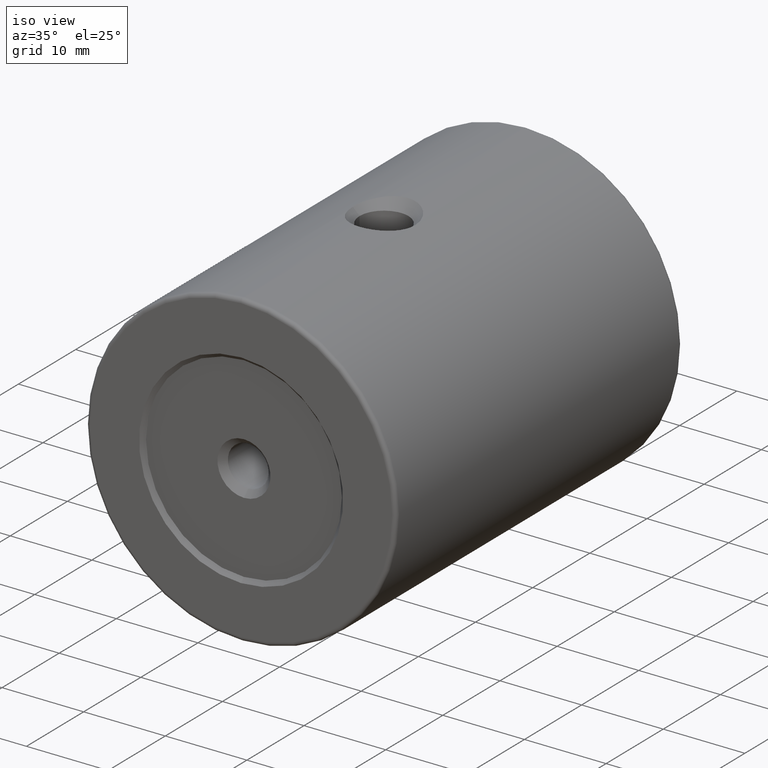
[diagram: clean part render]
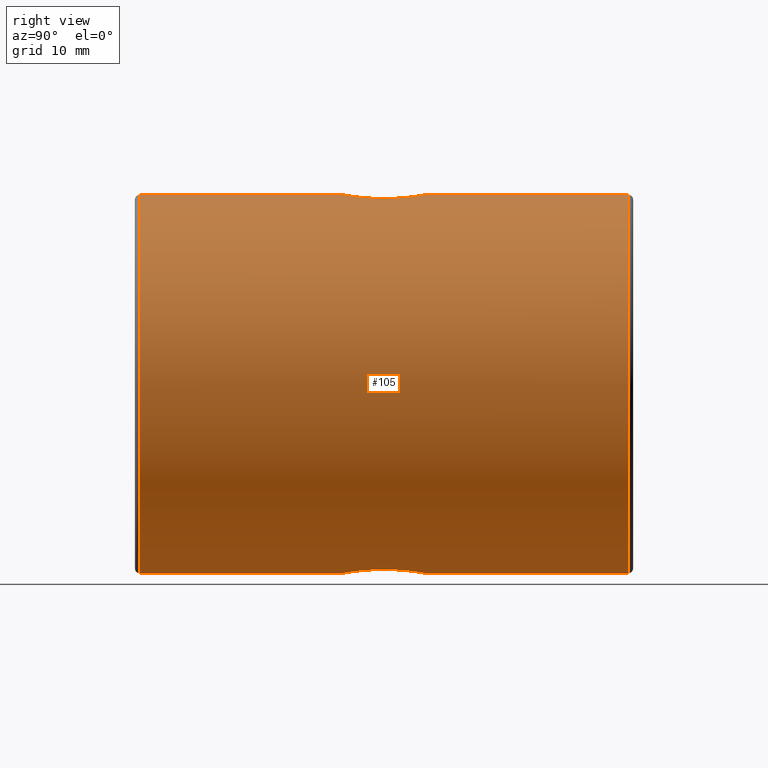
[diagram: tour spotlight — one face highlighted and labeled with its STEP entity id]
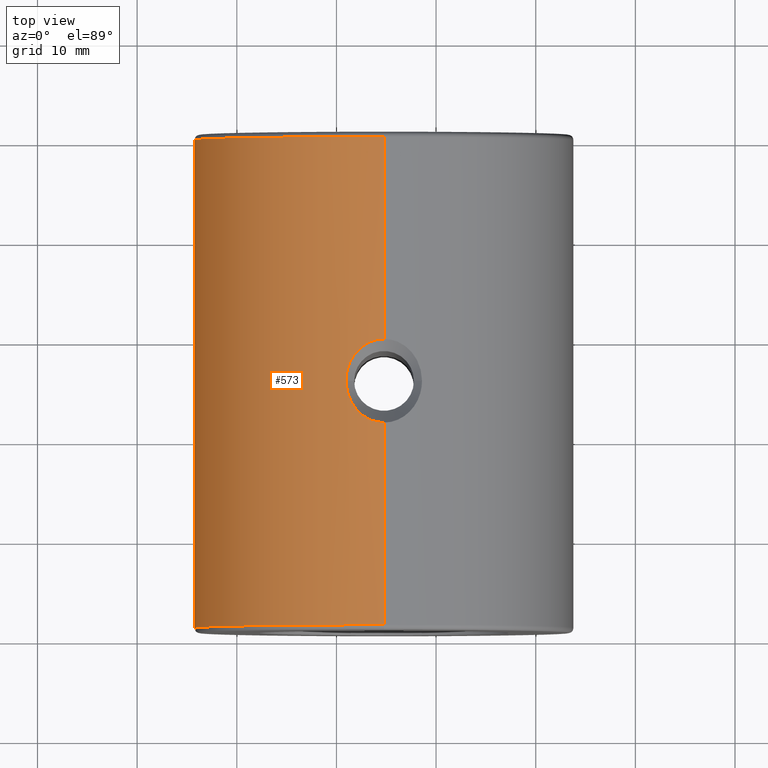
[diagram: tour spotlight — one face highlighted and labeled with its STEP entity id]
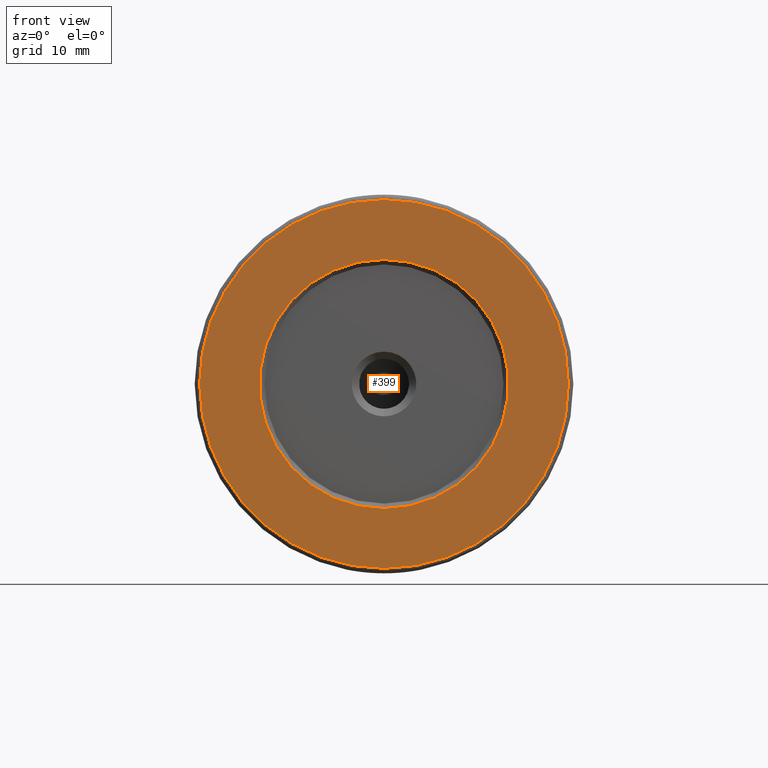
[diagram: tour spotlight — one face highlighted and labeled with its STEP entity id]
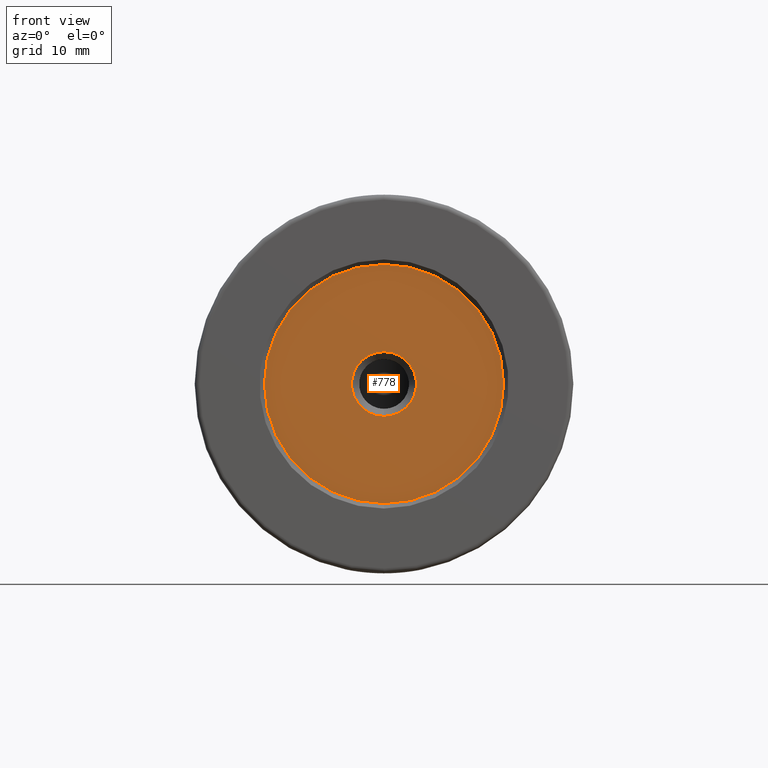
[diagram: tour spotlight — one face highlighted and labeled with its STEP entity id]
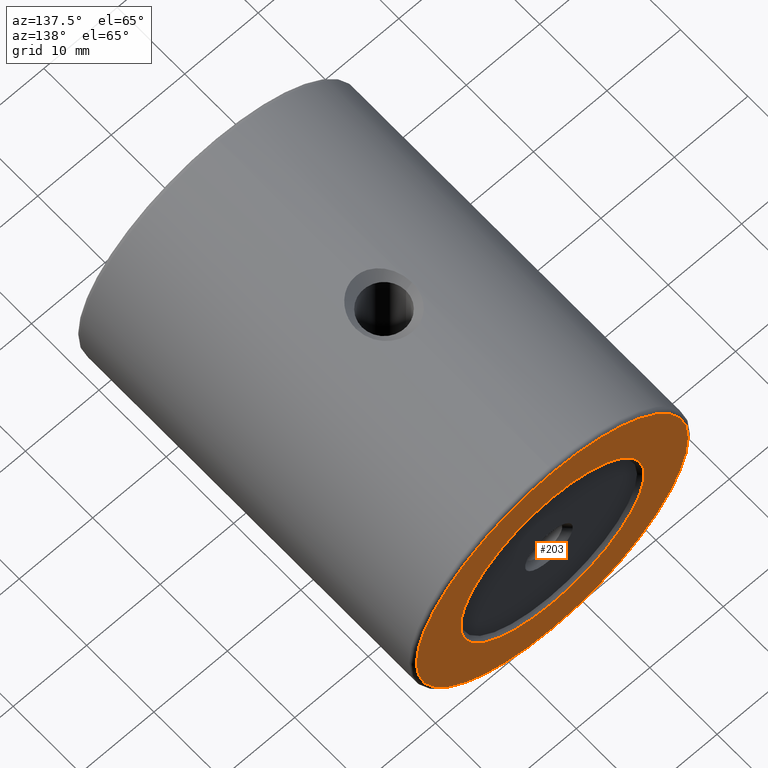
[diagram: tour spotlight — one face highlighted and labeled with its STEP entity id]
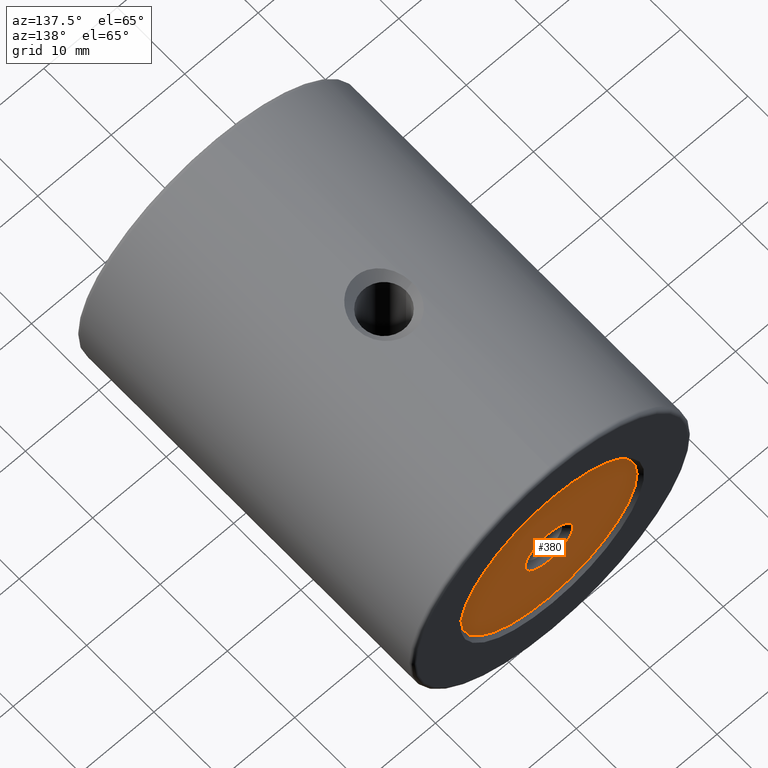
[diagram: tour spotlight — one face highlighted and labeled with its STEP entity id]
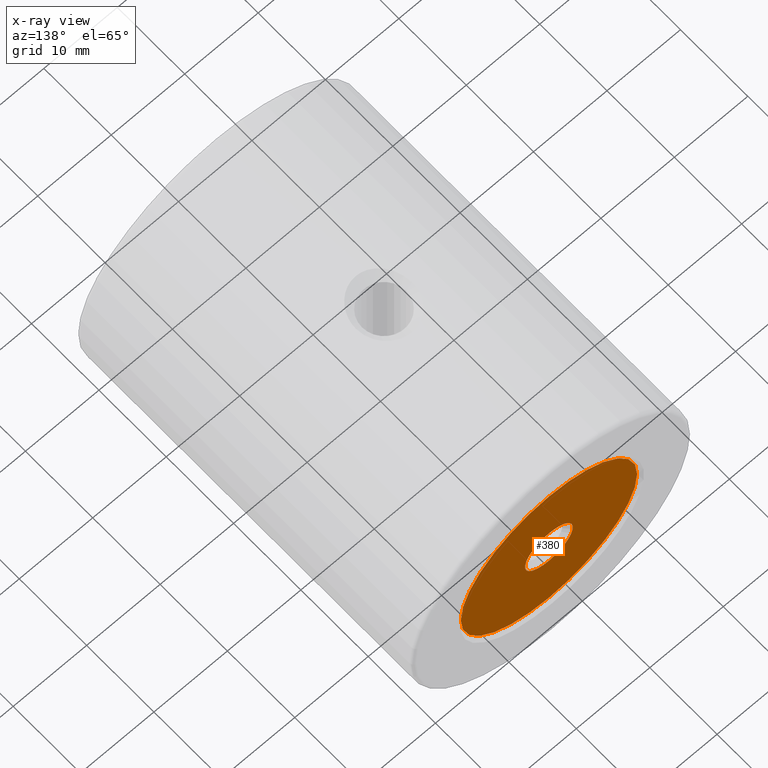
[diagram: x-ray of the same camera — body ghosted, this tour face saturated]
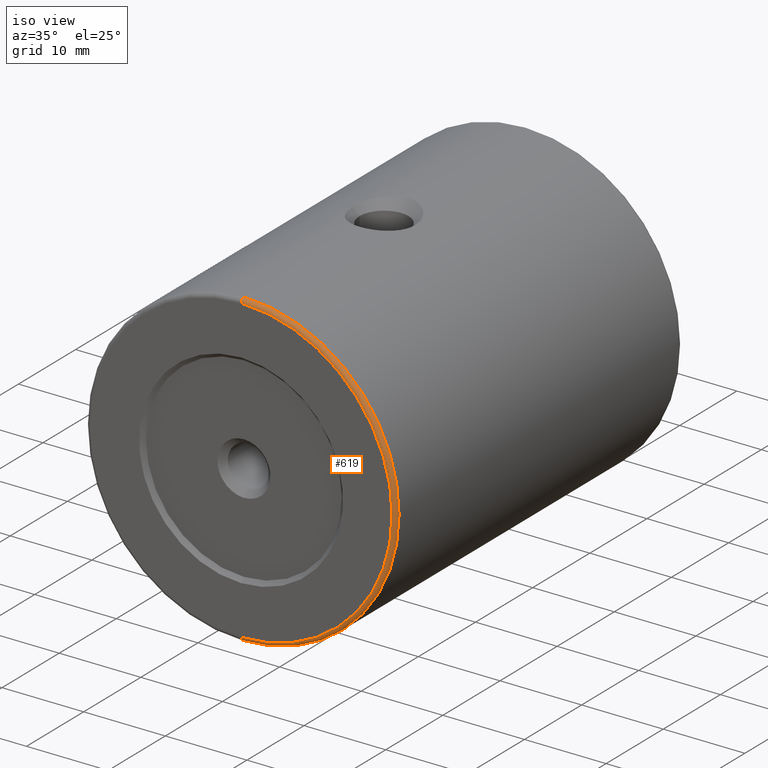
[diagram: tour spotlight — one face highlighted and labeled with its STEP entity id]
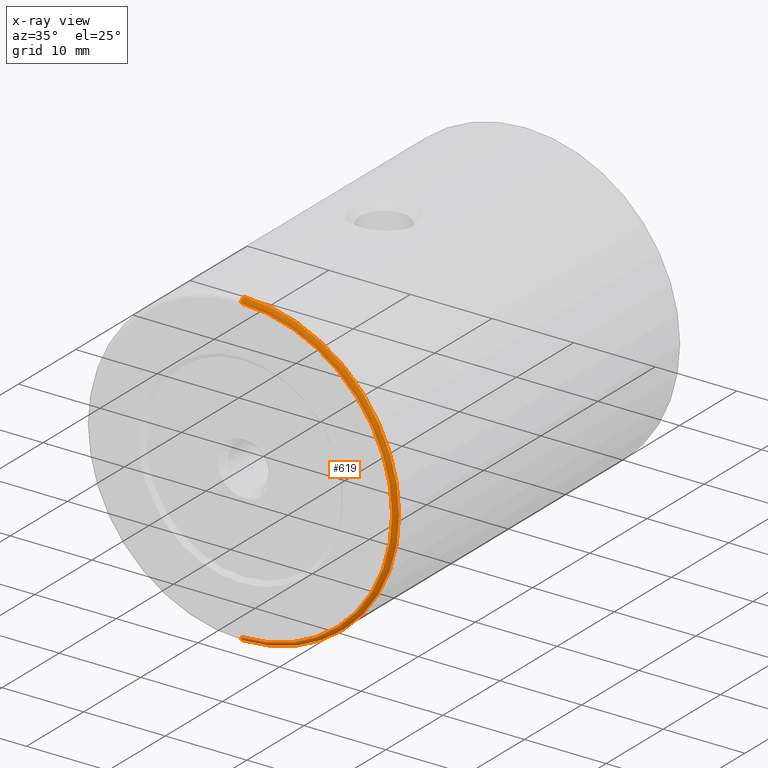
[diagram: x-ray of the same camera — body ghosted, this tour face saturated]
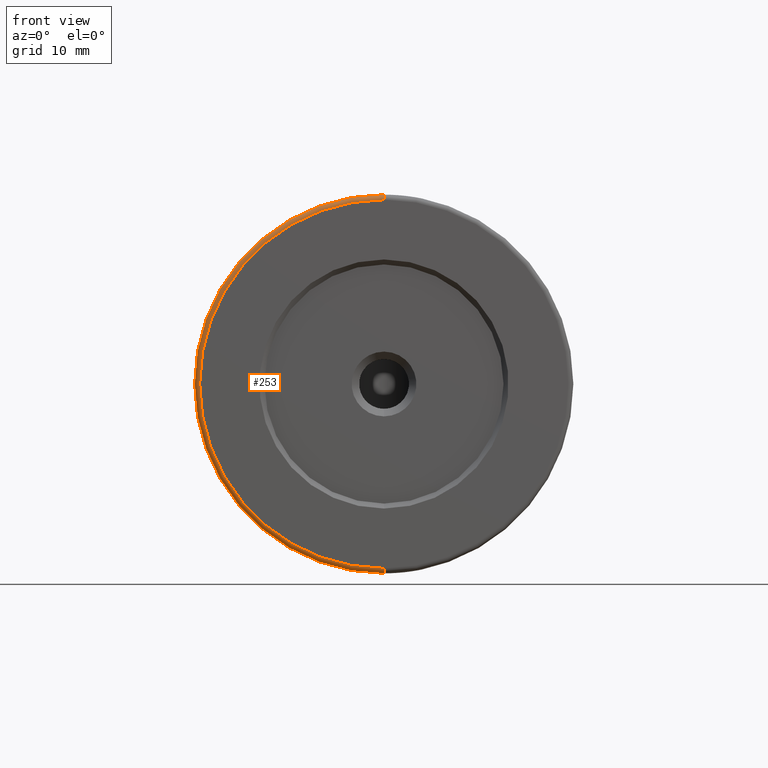
[diagram: tour spotlight — one face highlighted and labeled with its STEP entity id]
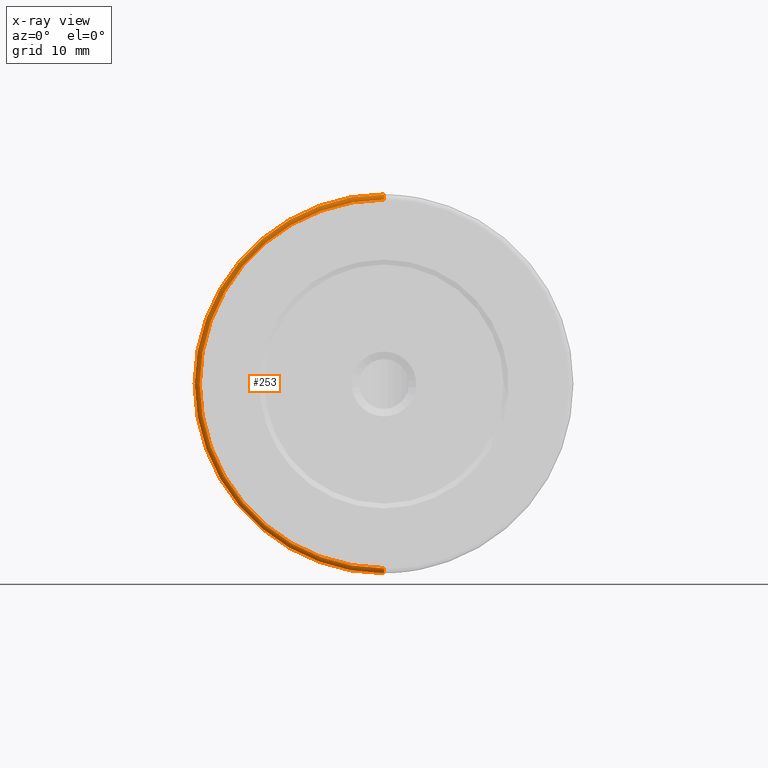
[diagram: x-ray of the same camera — body ghosted, this tour face saturated]
A machine part: a face-by-face anatomy tour. The part has 28 B-rep faces; the first image is the clean iso view, then the 8 largest visible faces are spotlighted one at a time (largest first), each with its STEP entity span.

Face 1 — right view, entity #105. In plain terms, the highlighted cylindrical surface (partial cylindrical patch) has radius 19 mm, axis along (-0, -1, -0).
Definition (entity closure, byte-faithful):
#9 = CARTESIAN_POINT ( 'NONE',  ( -82.29571650229409840, -1.565921010254242685, 418.7733634629371409 ) ) ;
#16 = CARTESIAN_POINT ( 'NONE',  ( -81.52612773688036896, -3.217498801581725854, 418.6361777253471814 ) ) ;
#19 = B_SPLINE_CURVE_WITH_KNOTS ( 'NONE', 3,
 ( #711, #775, #1014, #942, #65, #163, #499, #968, #99, #265, #345, #268, #421, #359, #178, #495, #123, #366 ),
 .UNSPECIFIED., .F., .F.,
 ( 4, 2, 2, 2, 2, 2, 2, 2, 4 ),
 ( 0.003733624680294762854, 0.004520577988407363350, 0.005307531296519963845, 0.006094484604632565208, 0.006881437912745166571, 0.007668391220857769669, 0.008455344528970371032, 0.009242297837082972395, 0.01002925114519557549 ),
 .UNSPECIFIED. ) ;
#25 = CARTESIAN_POINT ( 'NONE',  ( -81.88059113652985843, -6.288202399889226690, 418.7034922552546163 ) ) ;
#42 = DIRECTION ( 'NONE',  ( -0.0000000000000000000, -1.000000000000000000, -0.0000000000000000000 ) ) ;
#56 = CARTESIAN_POINT ( 'NONE',  ( -84.18753268678749180, -0.2111030241652349648, 381.0267308325566091 ) ) ;
#65 = CARTESIAN_POINT ( 'NONE',  ( -83.93808702169893365, -8.222923423920713404, 381.0422776972831116 ) ) ;
#72 = ORIENTED_EDGE ( 'NONE', *, *, #971, .T. ) ;
#81 = CARTESIAN_POINT ( 'NONE',  ( -82.14497683168238495, -1.778754477084894647, 418.7488661386886406 ) ) ;
#83 = EDGE_CURVE ( 'NONE', #220, #639, #853, .T. ) ;
#87 = CARTESIAN_POINT ( 'NONE',  ( -85.22679983354142053, 20.23866000832571643, 381.0000000000000000 ) ) ;
#94 = CARTESIAN_POINT ( 'NONE',  ( -85.22679983354142053, -28.76133999167428357, 381.0000000000000000 ) ) ;
#99 = CARTESIAN_POINT ( 'NONE',  ( -82.63814515825626472, -7.352595677616392322, 381.1763808475635642 ) ) ;
#101 = CARTESIAN_POINT ( 'NONE',  ( -82.29671814351611658, -6.957786961682561611, 418.7735023986901979 ) ) ;
#105 = ADVANCED_FACE ( 'NONE', ( #429 ), #438, .T. ) ;
#107 = CARTESIAN_POINT ( 'NONE',  ( -81.43586367851925445, -4.785232307264688068, 418.6180255036908306 ) ) ;
#115 = EDGE_CURVE ( 'NONE', #368, #639, #275, .T. ) ;
#117 = CARTESIAN_POINT ( 'NONE',  ( -82.63814515825626472, -7.352595677616392322, 418.8236191524364926 ) ) ;
#122 = CARTESIAN_POINT ( 'NONE',  ( -85.22679983354142053, -0.06133999167429877997, 381.0000000000000000 ) ) ;
#123 = CARTESIAN_POINT ( 'NONE',  ( -81.41341497436532393, -4.524701080299158740, 381.3866151408239489 ) ) ;
#132 = EDGE_LOOP ( 'NONE', ( #884, #72, #176, #954, #647, #535, #391, #456, #919, #316 ) ) ;
#151 = DIRECTION ( 'NONE',  ( -0.0000000000000000000, -1.000000000000000000, -0.0000000000000000000 ) ) ;
#159 = CARTESIAN_POINT ( 'NONE',  ( -85.22679983354142053, 20.73866000832571643, 419.0000000000000568 ) ) ;
#163 = CARTESIAN_POINT ( 'NONE',  ( -83.46626106639050136, -7.995107640163255702, 381.0802611310913903 ) ) ;
#165 = CARTESIAN_POINT ( 'NONE',  ( -83.46511704992533964, -0.5280370949836369343, 418.9196591600729107 ) ) ;
#173 = CARTESIAN_POINT ( 'NONE',  ( -81.41341497436532393, -4.261339991674277350, 381.3866151408238920 ) ) ;
#176 = ORIENTED_EDGE ( 'NONE', *, *, #350, .F. ) ;
#178 = CARTESIAN_POINT ( 'NONE',  ( -81.52508446630257311, -5.300719478809650553, 381.3640301049963455 ) ) ;
#192 = VECTOR ( 'NONE', #151, 1000.000000000000000 ) ;
#204 = CARTESIAN_POINT ( 'NONE',  ( -85.22679983354142053, 20.73866000832571643, 400.0000000000000000 ) ) ;
#205 = AXIS2_PLACEMENT_3D ( 'NONE', #423, #656, #960 ) ;
#216 = CARTESIAN_POINT ( 'NONE',  ( -85.22679983354142053, -0.06133999167429877997, 419.0000000000000568 ) ) ;
#220 = VERTEX_POINT ( 'NONE', #830 ) ;
#228 = CARTESIAN_POINT ( 'NONE',  ( -81.59279953389886941, -2.964568543362572584, 381.3505402671659681 ) ) ;
#251 = CARTESIAN_POINT ( 'NONE',  ( -81.41341497436532393, -4.261339991674279126, 418.6133848591761648 ) ) ;
#257 = CARTESIAN_POINT ( 'NONE',  ( -83.46626106639050136, -7.995107640163255702, 418.9197388689088370 ) ) ;
#258 = CARTESIAN_POINT ( 'NONE',  ( -84.18753268678747759, -0.2111030241652349926, 418.9732691674435046 ) ) ;
#263 = CARTESIAN_POINT ( 'NONE',  ( -85.22679983354142053, 20.73866000832571643, 381.0000000000000000 ) ) ;
#265 = CARTESIAN_POINT ( 'NONE',  ( -82.29671814351611658, -6.957786961682561611, 381.2264976013096884 ) ) ;
#268 = CARTESIAN_POINT ( 'NONE',  ( -81.88059113652985843, -6.288202399889226690, 381.2965077447454973 ) ) ;
#270 = EDGE_CURVE ( 'NONE', #751, #844, #781, .T. ) ;
#274 = CARTESIAN_POINT ( 'NONE',  ( -84.96243902164792416, -8.461339991674275751, 419.0000000000001137 ) ) ;
#275 = LINE ( 'NONE', #263, #555 ) ;
#292 = VERTEX_POINT ( 'NONE', #618 ) ;
#297 = CARTESIAN_POINT ( 'NONE',  ( -84.96393248785444996, -0.06133999167429707300, 381.0000000000000000 ) ) ;
#306 = CARTESIAN_POINT ( 'NONE',  ( -83.94119362236200743, -0.2983445582111096117, 381.0420400455853382 ) ) ;
#310 = CARTESIAN_POINT ( 'NONE',  ( -82.83102515499486174, -0.9863390833895689935, 381.1505157249931699 ) ) ;
#312 = EDGE_CURVE ( 'NONE', #578, #844, #482, .T. ) ;
#316 = ORIENTED_EDGE ( 'NONE', *, *, #312, .F. ) ;
#328 = DIRECTION ( 'NONE',  ( -0.0000000000000000000, -1.000000000000000000, -0.0000000000000000000 ) ) ;
#345 = CARTESIAN_POINT ( 'NONE',  ( -82.14309753980985818, -6.741247472261910012, 381.2514396459365571 ) ) ;
#350 = EDGE_CURVE ( 'NONE', #952, #906, #911, .T. ) ;
#359 = CARTESIAN_POINT ( 'NONE',  ( -81.59285872774556481, -5.558021363143366145, 381.3505314850146988 ) ) ;
#360 = AXIS2_PLACEMENT_3D ( 'NONE', #204, #42, #985 ) ;
#362 = EDGE_CURVE ( 'NONE', #605, #220, #731, .T. ) ;
#366 = CARTESIAN_POINT ( 'NONE',  ( -81.41341497436532393, -4.261339991674277350, 381.3866151408238920 ) ) ;
#368 = VERTEX_POINT ( 'NONE', #888 ) ;
#386 = CARTESIAN_POINT ( 'NONE',  ( -84.69707466841040855, -0.09239770115273913953, 381.0056742590844578 ) ) ;
#391 = ORIENTED_EDGE ( 'NONE', *, *, #115, .F. ) ;
#397 = CARTESIAN_POINT ( 'NONE',  ( -81.77187972696634688, -2.468561370532886379, 418.6834641745472823 ) ) ;
#406 = CARTESIAN_POINT ( 'NONE',  ( -85.22679983354142053, -0.06133999167429877997, 419.0000000000000568 ) ) ;
#412 = CARTESIAN_POINT ( 'NONE',  ( -83.94119362236200743, -0.2983445582111095007, 418.9579599544148323 ) ) ;
#417 = CARTESIAN_POINT ( 'NONE',  ( -85.22679983354142053, 20.73866000832571643, 381.0000000000000000 ) ) ;
#421 = CARTESIAN_POINT ( 'NONE',  ( -81.77082803723338600, -6.051458313143355028, 381.3167330802414767 ) ) ;
#423 = CARTESIAN_POINT ( 'NONE',  ( -85.22679983354142053, -28.76133999167428357, 400.0000000000000000 ) ) ;
#429 = FACE_OUTER_BOUND ( 'NONE', #132, .T. ) ;
#437 = CARTESIAN_POINT ( 'NONE',  ( -82.14309753980985818, -6.741247472261910012, 418.7485603540634429 ) ) ;
#438 = CYLINDRICAL_SURFACE ( 'NONE', #360, 19.00000000000001776 ) ;
#455 = CARTESIAN_POINT ( 'NONE',  ( -85.22679983354142053, -0.06133999167429877997, 381.0000000000000000 ) ) ;
#456 = ORIENTED_EDGE ( 'NONE', *, *, #998, .T. ) ;
#469 = CARTESIAN_POINT ( 'NONE',  ( -85.22679983354142053, 20.73866000832571643, 419.0000000000000568 ) ) ;
#474 = CIRCLE ( 'NONE', #709, 19.00000000000001776 ) ;
#482 = LINE ( 'NONE', #417, #744 ) ;
#495 = CARTESIAN_POINT ( 'NONE',  ( -81.43586367851925445, -4.785232307264686291, 381.3819744963091694 ) ) ;
#496 = CARTESIAN_POINT ( 'NONE',  ( -81.59279953389886941, -2.964568543362574360, 418.6494597328340888 ) ) ;
#499 = CARTESIAN_POINT ( 'NONE',  ( -83.24438980785724596, -7.856924346119599889, 381.1025380199827737 ) ) ;
#506 = CARTESIAN_POINT ( 'NONE',  ( -85.22679983354142053, -8.461339991674268646, 419.0000000000000568 ) ) ;
#535 = ORIENTED_EDGE ( 'NONE', *, *, #83, .T. ) ;
#542 = LINE ( 'NONE', #469, #192 ) ;
#552 = CARTESIAN_POINT ( 'NONE',  ( -85.22679983354142053, -8.461339991674268646, 419.0000000000000568 ) ) ;
#553 = DIRECTION ( 'NONE',  ( -0.0000000000000000000, -1.000000000000000000, -0.0000000000000000000 ) ) ;
#555 = VECTOR ( 'NONE', #592, 1000.000000000000000 ) ;
#568 = CARTESIAN_POINT ( 'NONE',  ( -81.43639937781144056, -3.732814026306843225, 418.6181352063767918 ) ) ;
#576 = CARTESIAN_POINT ( 'NONE',  ( -81.88335953815429491, -2.229144387579318209, 418.7039841074685000 ) ) ;
#578 = VERTEX_POINT ( 'NONE', #87 ) ;
#584 = CARTESIAN_POINT ( 'NONE',  ( -81.59285872774556481, -5.558021363143371474, 418.6494685149854149 ) ) ;
#589 = CARTESIAN_POINT ( 'NONE',  ( -81.77082803723338600, -6.051458313143361245, 418.6832669197586370 ) ) ;
#592 = DIRECTION ( 'NONE',  ( -0.0000000000000000000, -1.000000000000000000, -0.0000000000000000000 ) ) ;
#605 = VERTEX_POINT ( 'NONE', #552 ) ;
#618 = CARTESIAN_POINT ( 'NONE',  ( -85.22679983354142053, 20.23866000832571643, 419.0000000000000568 ) ) ;
#639 = VERTEX_POINT ( 'NONE', #94 ) ;
#647 = ORIENTED_EDGE ( 'NONE', *, *, #362, .T. ) ;
#656 = DIRECTION ( 'NONE',  ( 0.0000000000000000000, 1.000000000000000000, 0.0000000000000000000 ) ) ;
#661 = CARTESIAN_POINT ( 'NONE',  ( -84.18986350246656514, -8.312315706571794749, 418.9733988301109093 ) ) ;
#668 = EDGE_CURVE ( 'NONE', #578, #292, #474, .T. ) ;
#670 = CARTESIAN_POINT ( 'NONE',  ( -81.52508446630257311, -5.300719478809653218, 418.6359698950037682 ) ) ;
#680 = CARTESIAN_POINT ( 'NONE',  ( -83.93808702169893365, -8.222923423920713404, 418.9577223027167747 ) ) ;
#697 = CARTESIAN_POINT ( 'NONE',  ( -81.77187972696631846, -2.468561370532884602, 381.3165358254529451 ) ) ;
#709 = AXIS2_PLACEMENT_3D ( 'NONE', #811, #726, #823 ) ;
#711 = CARTESIAN_POINT ( 'NONE',  ( -85.22679983354142053, -8.461339991674268646, 381.0000000000000000 ) ) ;
#726 = DIRECTION ( 'NONE',  ( -0.0000000000000000000, -1.000000000000000000, -0.0000000000000000000 ) ) ;
#731 = LINE ( 'NONE', #159, #948 ) ;
#744 = VECTOR ( 'NONE', #553, 1000.000000000000000 ) ;
#751 = VERTEX_POINT ( 'NONE', #173 ) ;
#757 = CARTESIAN_POINT ( 'NONE',  ( -81.41341497436532393, -4.524701080299160516, 418.6133848591761648 ) ) ;
#767 = CARTESIAN_POINT ( 'NONE',  ( -82.29571650229409840, -1.565921010254241796, 381.2266365370629160 ) ) ;
#771 = CARTESIAN_POINT ( 'NONE',  ( -81.43639937781146898, -3.732814026306841892, 381.3818647936232082 ) ) ;
#775 = CARTESIAN_POINT ( 'NONE',  ( -84.96243902164792416, -8.461339991674275751, 381.0000000000000568 ) ) ;
#777 = CARTESIAN_POINT ( 'NONE',  ( -83.46511704992532543, -0.5280370949836370453, 381.0803408399271461 ) ) ;
#781 = B_SPLINE_CURVE_WITH_KNOTS ( 'NONE', 3,
 ( #935, #923, #771, #931, #228, #697, #1007, #782, #767, #855, #310, #846, #777, #306, #56, #386, #297, #455 ),
 .UNSPECIFIED., .F., .F.,
 ( 4, 2, 2, 2, 2, 2, 2, 2, 4 ),
 ( 0.01002925114519557549, 0.01081737704504791807, 0.01160550294490026065, 0.01239362884475260496, 0.01318175474460494753, 0.01396988064445729011, 0.01475800654430963268, 0.01554613244416197526, 0.01633425834401431784 ),
 .UNSPECIFIED. ) ;
#782 = CARTESIAN_POINT ( 'NONE',  ( -82.14497683168241338, -1.778754477084883101, 381.2511338613114162 ) ) ;
#790 = CARTESIAN_POINT ( 'NONE',  ( -81.41341497436532393, -4.261339991674279126, 418.6133848591761648 ) ) ;
#793 = CARTESIAN_POINT ( 'NONE',  ( -82.83102515499484753, -0.9863390833895698817, 418.8494842750069438 ) ) ;
#798 = CARTESIAN_POINT ( 'NONE',  ( -82.64087668775827922, -1.167056617506570415, 418.8240119711596208 ) ) ;
#808 = CARTESIAN_POINT ( 'NONE',  ( -84.69707466841043697, -0.09239770115273915341, 418.9943257409157127 ) ) ;
#810 = B_SPLINE_CURVE_WITH_KNOTS ( 'NONE', 3,
 ( #506, #274, #970, #661, #680, #257, #812, #824, #117, #101, #437, #25, #589, #584, #670, #107, #757, #965 ),
 .UNSPECIFIED., .F., .F.,
 ( 4, 2, 2, 2, 2, 2, 2, 2, 4 ),
 ( 0.003733624680294762854, 0.004520577988407363350, 0.005307531296519963845, 0.006094484604632564341, 0.006881437912745166571, 0.007668391220857767934, 0.008455344528970369297, 0.009242297837082972395, 0.01002925114519557376 ),
 .UNSPECIFIED. ) ;
#811 = CARTESIAN_POINT ( 'NONE',  ( -85.22679983354142053, 20.23866000832571643, 400.0000000000000000 ) ) ;
#812 = CARTESIAN_POINT ( 'NONE',  ( -83.24438980785724596, -7.856924346119599889, 418.8974619800173400 ) ) ;
#813 = CARTESIAN_POINT ( 'NONE',  ( -83.24199987212080032, -0.6676668308104377614, 418.8971787009924697 ) ) ;
#823 = DIRECTION ( 'NONE',  ( 0.0000000000000000000, 0.0000000000000000000, 1.000000000000000000 ) ) ;
#824 = CARTESIAN_POINT ( 'NONE',  ( -82.82757549099136440, -7.533607839044134558, 418.8490779973516851 ) ) ;
#830 = CARTESIAN_POINT ( 'NONE',  ( -85.22679983354142053, -28.76133999167428357, 419.0000000000000568 ) ) ;
#844 = VERTEX_POINT ( 'NONE', #122 ) ;
#846 = CARTESIAN_POINT ( 'NONE',  ( -83.24199987212081453, -0.6676668308104372063, 381.1028212990075872 ) ) ;
#853 = CIRCLE ( 'NONE', #205, 19.00000000000001776 ) ;
#855 = CARTESIAN_POINT ( 'NONE',  ( -82.64087668775829343, -1.167056617506569971, 381.1759880288403792 ) ) ;
#866 = CARTESIAN_POINT ( 'NONE',  ( -81.41341497436532393, -3.997586484548957486, 418.6133848591761648 ) ) ;
#884 = ORIENTED_EDGE ( 'NONE', *, *, #668, .T. ) ;
#888 = CARTESIAN_POINT ( 'NONE',  ( -85.22679983354142053, -8.461339991674268646, 381.0000000000000000 ) ) ;
#906 = VERTEX_POINT ( 'NONE', #216 ) ;
#911 = B_SPLINE_CURVE_WITH_KNOTS ( 'NONE', 3,
 ( #251, #866, #568, #16, #496, #397, #576, #81, #9, #798, #793, #813, #165, #412, #258, #808, #959, #406 ),
 .UNSPECIFIED., .F., .F.,
 ( 4, 2, 2, 2, 2, 2, 2, 2, 4 ),
 ( 0.01002925114519557376, 0.01081737704504791807, 0.01160550294490026065, 0.01239362884475260496, 0.01318175474460494753, 0.01396988064445729011, 0.01475800654430963268, 0.01554613244416197526, 0.01633425834401431784 ),
 .UNSPECIFIED. ) ;
#919 = ORIENTED_EDGE ( 'NONE', *, *, #270, .T. ) ;
#923 = CARTESIAN_POINT ( 'NONE',  ( -81.41341497436533814, -3.997586484548954822, 381.3866151408237783 ) ) ;
#931 = CARTESIAN_POINT ( 'NONE',  ( -81.52612773688034054, -3.217498801581724077, 381.3638222746528754 ) ) ;
#935 = CARTESIAN_POINT ( 'NONE',  ( -81.41341497436532393, -4.261339991674277350, 381.3866151408238920 ) ) ;
#942 = CARTESIAN_POINT ( 'NONE',  ( -84.18986350246656514, -8.312315706571794749, 381.0266011698889201 ) ) ;
#948 = VECTOR ( 'NONE', #328, 1000.000000000000000 ) ;
#952 = VERTEX_POINT ( 'NONE', #790 ) ;
#954 = ORIENTED_EDGE ( 'NONE', *, *, #1013, .F. ) ;
#959 = CARTESIAN_POINT ( 'NONE',  ( -84.96393248785446417, -0.06133999167429705912, 419.0000000000001705 ) ) ;
#960 = DIRECTION ( 'NONE',  ( 0.0000000000000000000, 0.0000000000000000000, 1.000000000000000000 ) ) ;
#965 = CARTESIAN_POINT ( 'NONE',  ( -81.41341497436532393, -4.261339991674279126, 418.6133848591761648 ) ) ;
#968 = CARTESIAN_POINT ( 'NONE',  ( -82.82757549099136440, -7.533607839044134558, 381.1509220026484286 ) ) ;
#970 = CARTESIAN_POINT ( 'NONE',  ( -84.69972560880194123, -8.430702186240790041, 418.9944016194976939 ) ) ;
#971 = EDGE_CURVE ( 'NONE', #292, #906, #542, .T. ) ;
#985 = DIRECTION ( 'NONE',  ( 0.0000000000000000000, 0.0000000000000000000, -1.000000000000000000 ) ) ;
#998 = EDGE_CURVE ( 'NONE', #368, #751, #19, .T. ) ;
#1007 = CARTESIAN_POINT ( 'NONE',  ( -81.88335953815429491, -2.229144387579305775, 381.2960158925316705 ) ) ;
#1013 = EDGE_CURVE ( 'NONE', #605, #952, #810, .T. ) ;
#1014 = CARTESIAN_POINT ( 'NONE',  ( -84.69972560880194123, -8.430702186240790041, 381.0055983805024198 ) ) ;

Face 2 — top view, entity #573. In plain terms, the highlighted cylindrical surface (partial cylindrical patch) has radius 19 mm, axis along (-0, -1, -0).
Definition (entity closure, byte-faithful):
#2 = VERTEX_POINT ( 'NONE', #945 ) ;
#6 = CARTESIAN_POINT ( 'NONE',  ( -89.04018469271751712, -4.261339991674283567, 418.6133848591761648 ) ) ;
#11 = ORIENTED_EDGE ( 'NONE', *, *, #903, .T. ) ;
#20 = CARTESIAN_POINT ( 'NONE',  ( -88.86003986455601478, -5.560364975193093251, 418.6496055284342788 ) ) ;
#45 = CARTESIAN_POINT ( 'NONE',  ( -87.61973751830021229, -7.539048035020909921, 418.8498653824453868 ) ) ;
#57 = DIRECTION ( 'NONE',  ( 0.0000000000000000000, 0.0000000000000000000, -1.000000000000000000 ) ) ;
#63 = CARTESIAN_POINT ( 'NONE',  ( -86.26440072079715549, -0.2103516366053766184, 418.9733999019272801 ) ) ;
#70 = CARTESIAN_POINT ( 'NONE',  ( -85.22679983354142053, 20.23866000832571643, 400.0000000000000000 ) ) ;
#71 = CARTESIAN_POINT ( 'NONE',  ( -86.51258600344370109, -0.2986253842693811777, 381.0420819662991789 ) ) ;
#77 = CARTESIAN_POINT ( 'NONE',  ( -86.51258600344370109, -0.2986253842693811777, 418.9579180337008211 ) ) ;
#87 = CARTESIAN_POINT ( 'NONE',  ( -85.22679983354142053, 20.23866000832571643, 381.0000000000000000 ) ) ;
#90 = CARTESIAN_POINT ( 'NONE',  ( -89.04018469271750291, -4.524194045943173315, 418.6133848591762217 ) ) ;
#94 = CARTESIAN_POINT ( 'NONE',  ( -85.22679983354142053, -28.76133999167428357, 381.0000000000000000 ) ) ;
#102 = CARTESIAN_POINT ( 'NONE',  ( -88.86003986455601478, -5.560364975193093251, 381.3503944715658349 ) ) ;
#115 = EDGE_CURVE ( 'NONE', #368, #639, #275, .T. ) ;
#116 = CARTESIAN_POINT ( 'NONE',  ( -85.49146371113677390, -8.461339991674272198, 419.0000000000001705 ) ) ;
#118 = EDGE_CURVE ( 'NONE', #639, #220, #522, .T. ) ;
#120 = ORIENTED_EDGE ( 'NONE', *, *, #115, .T. ) ;
#122 = CARTESIAN_POINT ( 'NONE',  ( -85.22679983354142053, -0.06133999167429877997, 381.0000000000000000 ) ) ;
#134 = CARTESIAN_POINT ( 'NONE',  ( -88.30889371447072733, -1.779107847670829301, 418.7488230436633785 ) ) ;
#144 = CARTESIAN_POINT ( 'NONE',  ( -85.74900820764774778, -0.09101629208817690886, 381.0054266209082812 ) ) ;
#149 = CARTESIAN_POINT ( 'NONE',  ( -88.92749338337961262, -3.217524007279799481, 381.3638264625174088 ) ) ;
#151 = DIRECTION ( 'NONE',  ( -0.0000000000000000000, -1.000000000000000000, -0.0000000000000000000 ) ) ;
#159 = CARTESIAN_POINT ( 'NONE',  ( -85.22679983354142053, 20.73866000832571643, 419.0000000000000568 ) ) ;
#164 = CARTESIAN_POINT ( 'NONE',  ( -86.98410511525524669, -7.996885633606630961, 381.0799701750693771 ) ) ;
#189 = DIRECTION ( 'NONE',  ( 0.0000000000000000000, 0.0000000000000000000, 1.000000000000000000 ) ) ;
#192 = VECTOR ( 'NONE', #151, 1000.000000000000000 ) ;
#209 = CARTESIAN_POINT ( 'NONE',  ( -87.81247192360183362, -1.166828721202192165, 418.8240449429266050 ) ) ;
#213 = CARTESIAN_POINT ( 'NONE',  ( -88.57090845425022962, -2.230408319438852871, 381.2961339358312216 ) ) ;
#216 = CARTESIAN_POINT ( 'NONE',  ( -85.22679983354142053, -0.06133999167429877997, 419.0000000000000568 ) ) ;
#218 = CARTESIAN_POINT ( 'NONE',  ( -88.86084895124396610, -2.964938769552044828, 381.3505518109733430 ) ) ;
#220 = VERTEX_POINT ( 'NONE', #830 ) ;
#224 = CARTESIAN_POINT ( 'NONE',  ( -88.68258810927235913, -2.470732174027440387, 381.3166984144028220 ) ) ;
#248 = ORIENTED_EDGE ( 'NONE', *, *, #763, .F. ) ;
#254 = AXIS2_PLACEMENT_3D ( 'NONE', #972, #895, #189 ) ;
#261 = B_SPLINE_CURVE_WITH_KNOTS ( 'NONE', 3,
 ( #514, #278, #904, #674, #102, #597, #872, #707, #721, #327, #400, #717, #164, #645, #396, #712, #1015, #314 ),
 .UNSPECIFIED., .F., .F.,
 ( 4, 2, 2, 2, 2, 2, 2, 2, 4 ),
 ( 0.02262406464777516613, 0.02341192012650424731, 0.02419977560523332849, 0.02498763108396241314, 0.02577548656269149432, 0.02656334204142057551, 0.02735119752014966016, 0.02813905299887874134, 0.02892690847760782252 ),
 .UNSPECIFIED. ) ;
#263 = CARTESIAN_POINT ( 'NONE',  ( -85.22679983354142053, 20.73866000832571643, 381.0000000000000000 ) ) ;
#275 = LINE ( 'NONE', #263, #555 ) ;
#278 = CARTESIAN_POINT ( 'NONE',  ( -89.04018469271750291, -4.524194045943173315, 381.3866151408239489 ) ) ;
#283 = EDGE_CURVE ( 'NONE', #844, #2, #545, .T. ) ;
#287 = CARTESIAN_POINT ( 'NONE',  ( -87.20501299645449933, -7.859601616013272007, 418.8978900510489325 ) ) ;
#291 = CARTESIAN_POINT ( 'NONE',  ( -85.22679983354142053, 20.73866000832571643, 400.0000000000000000 ) ) ;
#292 = VERTEX_POINT ( 'NONE', #618 ) ;
#294 = AXIS2_PLACEMENT_3D ( 'NONE', #70, #643, #620 ) ;
#302 = CARTESIAN_POINT ( 'NONE',  ( -88.68258810927235913, -2.470732174027440387, 418.6833015855973485 ) ) ;
#304 = EDGE_CURVE ( 'NONE', #906, #991, #364, .T. ) ;
#312 = EDGE_CURVE ( 'NONE', #578, #844, #482, .T. ) ;
#314 = CARTESIAN_POINT ( 'NONE',  ( -85.22679983354142053, -8.461339991674268646, 381.0000000000000000 ) ) ;
#327 = CARTESIAN_POINT ( 'NONE',  ( -87.81196888986544025, -7.356176429533654471, 381.1758971842136248 ) ) ;
#328 = DIRECTION ( 'NONE',  ( -0.0000000000000000000, -1.000000000000000000, -0.0000000000000000000 ) ) ;
#332 = CARTESIAN_POINT ( 'NONE',  ( -89.01782207825233684, -4.784939022142112641, 418.6180084472278509 ) ) ;
#338 = CARTESIAN_POINT ( 'NONE',  ( -88.68189959692058721, -6.053472744008438156, 418.6834286230944713 ) ) ;
#344 = CARTESIAN_POINT ( 'NONE',  ( -88.30796467933343763, -6.745178320961991325, 418.7489826282481999 ) ) ;
#357 = EDGE_LOOP ( 'NONE', ( #928, #11, #570, #967, #941, #120, #878, #754, #248, #1005 ) ) ;
#362 = EDGE_CURVE ( 'NONE', #605, #220, #731, .T. ) ;
#364 = B_SPLINE_CURVE_WITH_KNOTS ( 'NONE', 3,
 ( #860, #471, #786, #63, #77, #449, #686, #610, #209, #384, #134, #690, #302, #999, #927, #477, #873, #6 ),
 .UNSPECIFIED., .F., .F.,
 ( 4, 2, 2, 2, 2, 2, 2, 2, 4 ),
 ( 0.01633425834401431784, 0.01712048413198442517, 0.01790670991995452904, 0.01869293570792463638, 0.01947916149589474372, 0.02026538728386484758, 0.02105161307183495145, 0.02183783885980505879, 0.02262406464777516613 ),
 .UNSPECIFIED. ) ;
#368 = VERTEX_POINT ( 'NONE', #888 ) ;
#372 = AXIS2_PLACEMENT_3D ( 'NONE', #291, #797, #57 ) ;
#384 = CARTESIAN_POINT ( 'NONE',  ( -88.15730954550808462, -1.565196067254975176, 418.7734514940302688 ) ) ;
#390 = CARTESIAN_POINT ( 'NONE',  ( -89.04018469271751712, -4.261339991674283567, 381.3866151408238920 ) ) ;
#396 = CARTESIAN_POINT ( 'NONE',  ( -86.26127162816044347, -8.313090059122508535, 381.0264652089310289 ) ) ;
#400 = CARTESIAN_POINT ( 'NONE',  ( -87.61973751830021229, -7.539048035020909921, 381.1501346175546701 ) ) ;
#417 = CARTESIAN_POINT ( 'NONE',  ( -85.22679983354142053, 20.73866000832571643, 381.0000000000000000 ) ) ;
#444 = CARTESIAN_POINT ( 'NONE',  ( -85.75119431850812646, -8.431120250548380213, 418.9944772180206769 ) ) ;
#449 = CARTESIAN_POINT ( 'NONE',  ( -86.98394057735728779, -0.5256534841595331686, 418.9200517613895727 ) ) ;
#462 = CARTESIAN_POINT ( 'NONE',  ( -88.30889371447072733, -1.779107847670829301, 381.2511769563365078 ) ) ;
#466 = CARTESIAN_POINT ( 'NONE',  ( -86.26440072079715549, -0.2103516366053766184, 381.0266000980727767 ) ) ;
#467 = EDGE_CURVE ( 'NONE', #2, #368, #261, .T. ) ;
#469 = CARTESIAN_POINT ( 'NONE',  ( -85.22679983354142053, 20.73866000832571643, 419.0000000000000568 ) ) ;
#471 = CARTESIAN_POINT ( 'NONE',  ( -85.48903342595741606, -0.06133999167429705912, 419.0000000000001705 ) ) ;
#477 = CARTESIAN_POINT ( 'NONE',  ( -89.01727933074084831, -3.733366076984472315, 418.6181191867033817 ) ) ;
#482 = LINE ( 'NONE', #417, #744 ) ;
#514 = CARTESIAN_POINT ( 'NONE',  ( -89.04018469271751712, -4.261339991674283567, 381.3866151408238920 ) ) ;
#522 = CIRCLE ( 'NONE', #254, 19.00000000000001776 ) ;
#532 = CARTESIAN_POINT ( 'NONE',  ( -85.22679983354142053, -8.461339991674268646, 419.0000000000000568 ) ) ;
#539 = CARTESIAN_POINT ( 'NONE',  ( -86.98394057735728779, -0.5256534841595331686, 381.0799482386107115 ) ) ;
#542 = LINE ( 'NONE', #469, #192 ) ;
#543 = CARTESIAN_POINT ( 'NONE',  ( -85.48903342595741606, -0.06133999167429705912, 380.9999999999999432 ) ) ;
#545 = B_SPLINE_CURVE_WITH_KNOTS ( 'NONE', 3,
 ( #708, #543, #144, #466, #71, #539, #989, #615, #548, #702, #462, #213, #224, #218, #149, #1004, #858, #390 ),
 .UNSPECIFIED., .F., .F.,
 ( 4, 2, 2, 2, 2, 2, 2, 2, 4 ),
 ( 0.01633425834401431784, 0.01712048413198442517, 0.01790670991995452904, 0.01869293570792463638, 0.01947916149589474372, 0.02026538728386484758, 0.02105161307183495145, 0.02183783885980505879, 0.02262406464777516613 ),
 .UNSPECIFIED. ) ;
#548 = CARTESIAN_POINT ( 'NONE',  ( -87.81247192360183362, -1.166828721202192165, 381.1759550570734518 ) ) ;
#552 = CARTESIAN_POINT ( 'NONE',  ( -85.22679983354142053, -8.461339991674268646, 419.0000000000000568 ) ) ;
#553 = DIRECTION ( 'NONE',  ( -0.0000000000000000000, -1.000000000000000000, -0.0000000000000000000 ) ) ;
#555 = VECTOR ( 'NONE', #592, 1000.000000000000000 ) ;
#570 = ORIENTED_EDGE ( 'NONE', *, *, #312, .T. ) ;
#573 = ADVANCED_FACE ( 'NONE', ( #687 ), #785, .T. ) ;
#574 = CARTESIAN_POINT ( 'NONE',  ( -88.57188684336087192, -6.290580469037319489, 418.7036980113034588 ) ) ;
#578 = VERTEX_POINT ( 'NONE', #87 ) ;
#592 = DIRECTION ( 'NONE',  ( -0.0000000000000000000, -1.000000000000000000, -0.0000000000000000000 ) ) ;
#597 = CARTESIAN_POINT ( 'NONE',  ( -88.68189959692058721, -6.053472744008438156, 381.3165713769054150 ) ) ;
#605 = VERTEX_POINT ( 'NONE', #552 ) ;
#610 = CARTESIAN_POINT ( 'NONE',  ( -87.62330431072487613, -0.9868626275845048257, 418.8494039038823757 ) ) ;
#615 = CARTESIAN_POINT ( 'NONE',  ( -87.62330431072487613, -0.9868626275845048257, 381.1505960961178516 ) ) ;
#618 = CARTESIAN_POINT ( 'NONE',  ( -85.22679983354142053, 20.23866000832571643, 419.0000000000000568 ) ) ;
#620 = DIRECTION ( 'NONE',  ( 0.0000000000000000000, 0.0000000000000000000, 1.000000000000000000 ) ) ;
#639 = VERTEX_POINT ( 'NONE', #94 ) ;
#643 = DIRECTION ( 'NONE',  ( -0.0000000000000000000, -1.000000000000000000, -0.0000000000000000000 ) ) ;
#645 = CARTESIAN_POINT ( 'NONE',  ( -86.51381476393198966, -8.223524199725767758, 381.0421719862650889 ) ) ;
#649 = CARTESIAN_POINT ( 'NONE',  ( -88.92822251687863400, -5.302205923223622719, 418.6360285018084824 ) ) ;
#660 = CARTESIAN_POINT ( 'NONE',  ( -88.15440500365676257, -6.961092752758728963, 418.7738934117829217 ) ) ;
#674 = CARTESIAN_POINT ( 'NONE',  ( -88.92822251687863400, -5.302205923223622719, 381.3639714981914040 ) ) ;
#686 = CARTESIAN_POINT ( 'NONE',  ( -87.21008987037792792, -0.6665384523181927534, 418.8973495991008917 ) ) ;
#687 = FACE_OUTER_BOUND ( 'NONE', #357, .T. ) ;
#690 = CARTESIAN_POINT ( 'NONE',  ( -88.57090845425022962, -2.230408319438852871, 418.7038660641689489 ) ) ;
#695 = CARTESIAN_POINT ( 'NONE',  ( -86.98410511525524669, -7.996885633606630961, 418.9200298249307366 ) ) ;
#699 = CARTESIAN_POINT ( 'NONE',  ( -89.04018469271751712, -4.261339991674283567, 418.6133848591761648 ) ) ;
#702 = CARTESIAN_POINT ( 'NONE',  ( -88.15730954550808462, -1.565196067254975176, 381.2265485059697880 ) ) ;
#707 = CARTESIAN_POINT ( 'NONE',  ( -88.30796467933343763, -6.745178320961991325, 381.2510173717518569 ) ) ;
#708 = CARTESIAN_POINT ( 'NONE',  ( -85.22679983354142053, -0.06133999167429877997, 381.0000000000000000 ) ) ;
#712 = CARTESIAN_POINT ( 'NONE',  ( -85.75119431850812646, -8.431120250548380213, 381.0055227819794936 ) ) ;
#717 = CARTESIAN_POINT ( 'NONE',  ( -87.20501299645449933, -7.859601616013272007, 381.1021099489511244 ) ) ;
#721 = CARTESIAN_POINT ( 'NONE',  ( -88.15440500365676257, -6.961092752758728963, 381.2261065882171351 ) ) ;
#731 = LINE ( 'NONE', #159, #948 ) ;
#740 = CIRCLE ( 'NONE', #294, 19.00000000000001776 ) ;
#744 = VECTOR ( 'NONE', #553, 1000.000000000000000 ) ;
#748 = CARTESIAN_POINT ( 'NONE',  ( -89.04018469271751712, -4.261339991674283567, 418.6133848591761648 ) ) ;
#754 = ORIENTED_EDGE ( 'NONE', *, *, #362, .F. ) ;
#763 = EDGE_CURVE ( 'NONE', #991, #605, #837, .T. ) ;
#785 = CYLINDRICAL_SURFACE ( 'NONE', #372, 19.00000000000001776 ) ;
#786 = CARTESIAN_POINT ( 'NONE',  ( -85.74900820764774778, -0.09101629208817690886, 418.9945733790917757 ) ) ;
#797 = DIRECTION ( 'NONE',  ( -0.0000000000000000000, -1.000000000000000000, -0.0000000000000000000 ) ) ;
#830 = CARTESIAN_POINT ( 'NONE',  ( -85.22679983354142053, -28.76133999167428357, 419.0000000000000568 ) ) ;
#837 = B_SPLINE_CURVE_WITH_KNOTS ( 'NONE', 3,
 ( #748, #90, #332, #649, #20, #338, #574, #344, #660, #964, #45, #287, #695, #925, #988, #444, #116, #532 ),
 .UNSPECIFIED., .F., .F.,
 ( 4, 2, 2, 2, 2, 2, 2, 2, 4 ),
 ( 0.02262406464777516613, 0.02341192012650424731, 0.02419977560523332849, 0.02498763108396241314, 0.02577548656269149432, 0.02656334204142057551, 0.02735119752014966016, 0.02813905299887874134, 0.02892690847760782252 ),
 .UNSPECIFIED. ) ;
#844 = VERTEX_POINT ( 'NONE', #122 ) ;
#858 = CARTESIAN_POINT ( 'NONE',  ( -89.04018469271751712, -3.999029654920558841, 381.3866151408238920 ) ) ;
#860 = CARTESIAN_POINT ( 'NONE',  ( -85.22679983354142053, -0.06133999167429877997, 419.0000000000000568 ) ) ;
#872 = CARTESIAN_POINT ( 'NONE',  ( -88.57188684336087192, -6.290580469037319489, 381.2963019886966549 ) ) ;
#873 = CARTESIAN_POINT ( 'NONE',  ( -89.04018469271751712, -3.999029654920558841, 418.6133848591761648 ) ) ;
#878 = ORIENTED_EDGE ( 'NONE', *, *, #118, .T. ) ;
#888 = CARTESIAN_POINT ( 'NONE',  ( -85.22679983354142053, -8.461339991674268646, 381.0000000000000000 ) ) ;
#895 = DIRECTION ( 'NONE',  ( 0.0000000000000000000, 1.000000000000000000, 0.0000000000000000000 ) ) ;
#903 = EDGE_CURVE ( 'NONE', #292, #578, #740, .T. ) ;
#904 = CARTESIAN_POINT ( 'NONE',  ( -89.01782207825233684, -4.784939022142112641, 381.3819915527722060 ) ) ;
#906 = VERTEX_POINT ( 'NONE', #216 ) ;
#925 = CARTESIAN_POINT ( 'NONE',  ( -86.51381476393198966, -8.223524199725767758, 418.9578280137350816 ) ) ;
#927 = CARTESIAN_POINT ( 'NONE',  ( -88.92749338337961262, -3.217524007279799481, 418.6361735374826480 ) ) ;
#928 = ORIENTED_EDGE ( 'NONE', *, *, #971, .F. ) ;
#941 = ORIENTED_EDGE ( 'NONE', *, *, #467, .T. ) ;
#945 = CARTESIAN_POINT ( 'NONE',  ( -89.04018469271751712, -4.261339991674283567, 381.3866151408238920 ) ) ;
#948 = VECTOR ( 'NONE', #328, 1000.000000000000000 ) ;
#964 = CARTESIAN_POINT ( 'NONE',  ( -87.81196888986544025, -7.356176429533654471, 418.8241028157862615 ) ) ;
#967 = ORIENTED_EDGE ( 'NONE', *, *, #283, .T. ) ;
#971 = EDGE_CURVE ( 'NONE', #292, #906, #542, .T. ) ;
#972 = CARTESIAN_POINT ( 'NONE',  ( -85.22679983354142053, -28.76133999167428357, 400.0000000000000000 ) ) ;
#988 = CARTESIAN_POINT ( 'NONE',  ( -86.26127162816044347, -8.313090059122508535, 418.9735347910690848 ) ) ;
#989 = CARTESIAN_POINT ( 'NONE',  ( -87.21008987037792792, -0.6665384523181927534, 381.1026504008992788 ) ) ;
#991 = VERTEX_POINT ( 'NONE', #699 ) ;
#999 = CARTESIAN_POINT ( 'NONE',  ( -88.86084895124396610, -2.964938769552044828, 418.6494481890263728 ) ) ;
#1004 = CARTESIAN_POINT ( 'NONE',  ( -89.01727933074084831, -3.733366076984472315, 381.3818808132967320 ) ) ;
#1005 = ORIENTED_EDGE ( 'NONE', *, *, #304, .F. ) ;
#1015 = CARTESIAN_POINT ( 'NONE',  ( -85.49146371113677390, -8.461339991674272198, 381.0000000000000000 ) ) ;

Face 3 — front view, entity #399. In plain terms, the highlighted planar face has unit normal (0, 1, 0).
Definition (entity closure, byte-faithful):
#1 = PLANE ( 'NONE',  #644 ) ;
#15 = CARTESIAN_POINT ( 'NONE',  ( -85.22679983354142053, -29.26133999167428357, 387.5000000000000000 ) ) ;
#31 = EDGE_CURVE ( 'NONE', #540, #729, #538, .T. ) ;
#51 = CARTESIAN_POINT ( 'NONE',  ( -85.22679983354142053, -29.26133999167428357, 412.5000000000000568 ) ) ;
#53 = AXIS2_PLACEMENT_3D ( 'NONE', #918, #405, #389 ) ;
#54 = EDGE_CURVE ( 'NONE', #348, #136, #738, .T. ) ;
#126 = ORIENTED_EDGE ( 'NONE', *, *, #31, .T. ) ;
#136 = VERTEX_POINT ( 'NONE', #361 ) ;
#150 = EDGE_LOOP ( 'NONE', ( #856, #806 ) ) ;
#162 = CIRCLE ( 'NONE', #243, 18.50000000000001776 ) ;
#174 = DIRECTION ( 'NONE',  ( 0.0000000000000000000, -0.0000000000000000000, 1.000000000000000000 ) ) ;
#175 = DIRECTION ( 'NONE',  ( -0.0000000000000000000, -1.000000000000000000, -0.0000000000000000000 ) ) ;
#179 = DIRECTION ( 'NONE',  ( -0.0000000000000000000, -1.000000000000000000, -0.0000000000000000000 ) ) ;
#241 = CARTESIAN_POINT ( 'NONE',  ( -85.22679983354142053, -29.26133999167428357, 381.5000000000000000 ) ) ;
#242 = CARTESIAN_POINT ( 'NONE',  ( -85.22679983354142053, -29.26133999167428357, 400.0000000000000000 ) ) ;
#243 = AXIS2_PLACEMENT_3D ( 'NONE', #727, #179, #333 ) ;
#315 = CARTESIAN_POINT ( 'NONE',  ( -85.22679983354142053, -29.26133999167428357, 400.0000000000000000 ) ) ;
#333 = DIRECTION ( 'NONE',  ( 0.0000000000000000000, 0.0000000000000000000, 1.000000000000000000 ) ) ;
#348 = VERTEX_POINT ( 'NONE', #241 ) ;
#361 = CARTESIAN_POINT ( 'NONE',  ( -85.22679983354142053, -29.26133999167428357, 418.5000000000000568 ) ) ;
#389 = DIRECTION ( 'NONE',  ( 0.0000000000000000000, 0.0000000000000000000, 1.000000000000000000 ) ) ;
#393 = EDGE_CURVE ( 'NONE', #136, #348, #162, .T. ) ;
#399 = ADVANCED_FACE ( 'NONE', ( #650, #956 ), #1, .F. ) ;
#405 = DIRECTION ( 'NONE',  ( -0.0000000000000000000, 1.000000000000000000, -0.0000000000000000000 ) ) ;
#407 = DIRECTION ( 'NONE',  ( -0.0000000000000000000, 1.000000000000000000, -0.0000000000000000000 ) ) ;
#409 = AXIS2_PLACEMENT_3D ( 'NONE', #242, #175, #492 ) ;
#439 = ORIENTED_EDGE ( 'NONE', *, *, #593, .T. ) ;
#492 = DIRECTION ( 'NONE',  ( 0.0000000000000000000, 0.0000000000000000000, 1.000000000000000000 ) ) ;
#500 = CIRCLE ( 'NONE', #53, 12.50000000000001066 ) ;
#538 = CIRCLE ( 'NONE', #784, 12.50000000000001066 ) ;
#540 = VERTEX_POINT ( 'NONE', #51 ) ;
#569 = DIRECTION ( 'NONE',  ( 0.0000000000000000000, 0.0000000000000000000, 1.000000000000000000 ) ) ;
#593 = EDGE_CURVE ( 'NONE', #729, #540, #500, .T. ) ;
#644 = AXIS2_PLACEMENT_3D ( 'NONE', #315, #882, #174 ) ;
#650 = FACE_BOUND ( 'NONE', #663, .T. ) ;
#663 = EDGE_LOOP ( 'NONE', ( #126, #439 ) ) ;
#719 = CARTESIAN_POINT ( 'NONE',  ( -85.22679983354142053, -29.26133999167428357, 400.0000000000000000 ) ) ;
#727 = CARTESIAN_POINT ( 'NONE',  ( -85.22679983354142053, -29.26133999167428357, 400.0000000000000000 ) ) ;
#729 = VERTEX_POINT ( 'NONE', #15 ) ;
#738 = CIRCLE ( 'NONE', #409, 18.50000000000001776 ) ;
#784 = AXIS2_PLACEMENT_3D ( 'NONE', #719, #407, #569 ) ;
#806 = ORIENTED_EDGE ( 'NONE', *, *, #54, .T. ) ;
#856 = ORIENTED_EDGE ( 'NONE', *, *, #393, .T. ) ;
#882 = DIRECTION ( 'NONE',  ( 0.0000000000000000000, 1.000000000000000000, 0.0000000000000000000 ) ) ;
#918 = CARTESIAN_POINT ( 'NONE',  ( -85.22679983354142053, -29.26133999167428357, 400.0000000000000000 ) ) ;
#956 = FACE_OUTER_BOUND ( 'NONE', #150, .T. ) ;

Face 4 — front view, entity #778. In plain terms, the highlighted planar face has unit normal (0, -1, 0).
Definition (entity closure, byte-faithful):
#8 = DIRECTION ( 'NONE',  ( -0.0000000000000000000, 1.000000000000000000, -0.0000000000000000000 ) ) ;
#78 = EDGE_LOOP ( 'NONE', ( #816, #170 ) ) ;
#91 = DIRECTION ( 'NONE',  ( -0.0000000000000000000, 1.000000000000000000, -0.0000000000000000000 ) ) ;
#125 = CIRCLE ( 'NONE', #236, 12.00000000000001066 ) ;
#138 = CARTESIAN_POINT ( 'NONE',  ( -85.22679983354142053, -28.76133999167428357, 403.2500000000000568 ) ) ;
#167 = EDGE_LOOP ( 'NONE', ( #577, #693 ) ) ;
#170 = ORIENTED_EDGE ( 'NONE', *, *, #596, .F. ) ;
#185 = CARTESIAN_POINT ( 'NONE',  ( -85.22679983354142053, -28.76133999167428357, 400.0000000000000000 ) ) ;
#200 = DIRECTION ( 'NONE',  ( 0.0000000000000000000, 0.0000000000000000000, -1.000000000000000000 ) ) ;
#219 = EDGE_CURVE ( 'NONE', #875, #586, #125, .T. ) ;
#232 = CARTESIAN_POINT ( 'NONE',  ( -85.22679983354142053, -28.76133999167428357, 400.0000000000000000 ) ) ;
#236 = AXIS2_PLACEMENT_3D ( 'NONE', #185, #905, #200 ) ;
#269 = CIRCLE ( 'NONE', #404, 12.00000000000001066 ) ;
#284 = PLANE ( 'NONE',  #523 ) ;
#303 = VERTEX_POINT ( 'NONE', #138 ) ;
#321 = EDGE_CURVE ( 'NONE', #303, #710, #430, .T. ) ;
#381 = FACE_OUTER_BOUND ( 'NONE', #78, .T. ) ;
#394 = CIRCLE ( 'NONE', #867, 3.249999999999975131 ) ;
#404 = AXIS2_PLACEMENT_3D ( 'NONE', #232, #8, #1010 ) ;
#420 = CARTESIAN_POINT ( 'NONE',  ( -85.22679983354142053, -28.76133999167428357, 400.0000000000000000 ) ) ;
#430 = CIRCLE ( 'NONE', #1000, 3.249999999999975131 ) ;
#475 = CARTESIAN_POINT ( 'NONE',  ( -85.22679983354142053, -28.76133999167428357, 412.0000000000000568 ) ) ;
#487 = CARTESIAN_POINT ( 'NONE',  ( -85.22679983354142053, -28.76133999167428357, 400.0000000000000000 ) ) ;
#511 = DIRECTION ( 'NONE',  ( 0.0000000000000000000, -1.000000000000000000, 0.0000000000000000000 ) ) ;
#523 = AXIS2_PLACEMENT_3D ( 'NONE', #603, #511, #765 ) ;
#577 = ORIENTED_EDGE ( 'NONE', *, *, #715, .T. ) ;
#586 = VERTEX_POINT ( 'NONE', #612 ) ;
#596 = EDGE_CURVE ( 'NONE', #586, #875, #269, .T. ) ;
#603 = CARTESIAN_POINT ( 'NONE',  ( -85.22679983354142053, -28.76133999167428357, 400.0000000000000000 ) ) ;
#612 = CARTESIAN_POINT ( 'NONE',  ( -85.22679983354142053, -28.76133999167428357, 388.0000000000000000 ) ) ;
#693 = ORIENTED_EDGE ( 'NONE', *, *, #321, .T. ) ;
#710 = VERTEX_POINT ( 'NONE', #742 ) ;
#713 = DIRECTION ( 'NONE',  ( 0.0000000000000000000, 0.0000000000000000000, -1.000000000000000000 ) ) ;
#715 = EDGE_CURVE ( 'NONE', #710, #303, #394, .T. ) ;
#742 = CARTESIAN_POINT ( 'NONE',  ( -85.22679983354142053, -28.76133999167428357, 396.7500000000000000 ) ) ;
#765 = DIRECTION ( 'NONE',  ( 0.0000000000000000000, 0.0000000000000000000, 1.000000000000000000 ) ) ;
#778 = ADVANCED_FACE ( 'NONE', ( #840, #381 ), #284, .T. ) ;
#816 = ORIENTED_EDGE ( 'NONE', *, *, #219, .F. ) ;
#840 = FACE_BOUND ( 'NONE', #167, .T. ) ;
#867 = AXIS2_PLACEMENT_3D ( 'NONE', #420, #881, #893 ) ;
#875 = VERTEX_POINT ( 'NONE', #475 ) ;
#881 = DIRECTION ( 'NONE',  ( -0.0000000000000000000, 1.000000000000000000, -0.0000000000000000000 ) ) ;
#893 = DIRECTION ( 'NONE',  ( 0.0000000000000000000, 0.0000000000000000000, -1.000000000000000000 ) ) ;
#905 = DIRECTION ( 'NONE',  ( -0.0000000000000000000, 1.000000000000000000, -0.0000000000000000000 ) ) ;
#1000 = AXIS2_PLACEMENT_3D ( 'NONE', #487, #91, #713 ) ;
#1010 = DIRECTION ( 'NONE',  ( 0.0000000000000000000, 0.0000000000000000000, -1.000000000000000000 ) ) ;

Face 5 — auxiliary view, entity #203. In plain terms, the highlighted planar face has unit normal (0, 1, 0).
Definition (entity closure, byte-faithful):
#13 = ORIENTED_EDGE ( 'NONE', *, *, #653, .T. ) ;
#29 = CIRCLE ( 'NONE', #156, 18.50000000000001776 ) ;
#41 = DIRECTION ( 'NONE',  ( 0.0000000000000000000, 1.000000000000000000, 0.0000000000000000000 ) ) ;
#50 = CARTESIAN_POINT ( 'NONE',  ( -85.22679983354142053, 20.73866000832571643, 381.5000000000000000 ) ) ;
#58 = ORIENTED_EDGE ( 'NONE', *, *, #701, .T. ) ;
#62 = CIRCLE ( 'NONE', #295, 12.50000000000001066 ) ;
#108 = AXIS2_PLACEMENT_3D ( 'NONE', #835, #109, #124 ) ;
#109 = DIRECTION ( 'NONE',  ( 0.0000000000000000000, 1.000000000000000000, 0.0000000000000000000 ) ) ;
#124 = DIRECTION ( 'NONE',  ( 0.0000000000000000000, -0.0000000000000000000, 1.000000000000000000 ) ) ;
#128 = DIRECTION ( 'NONE',  ( 0.0000000000000000000, 0.0000000000000000000, 1.000000000000000000 ) ) ;
#156 = AXIS2_PLACEMENT_3D ( 'NONE', #494, #501, #958 ) ;
#161 = VERTEX_POINT ( 'NONE', #50 ) ;
#203 = ADVANCED_FACE ( 'NONE', ( #604, #761 ), #671, .T. ) ;
#256 = DIRECTION ( 'NONE',  ( 0.0000000000000000000, 0.0000000000000000000, 1.000000000000000000 ) ) ;
#279 = CARTESIAN_POINT ( 'NONE',  ( -85.22679983354142053, 20.73866000832571643, 412.5000000000000568 ) ) ;
#293 = AXIS2_PLACEMENT_3D ( 'NONE', #567, #425, #256 ) ;
#295 = AXIS2_PLACEMENT_3D ( 'NONE', #796, #313, #870 ) ;
#313 = DIRECTION ( 'NONE',  ( 0.0000000000000000000, 1.000000000000000000, 0.0000000000000000000 ) ) ;
#425 = DIRECTION ( 'NONE',  ( 0.0000000000000000000, 1.000000000000000000, 0.0000000000000000000 ) ) ;
#431 = VERTEX_POINT ( 'NONE', #944 ) ;
#494 = CARTESIAN_POINT ( 'NONE',  ( -85.22679983354142053, 20.73866000832571643, 400.0000000000000000 ) ) ;
#501 = DIRECTION ( 'NONE',  ( 0.0000000000000000000, 1.000000000000000000, 0.0000000000000000000 ) ) ;
#513 = VERTEX_POINT ( 'NONE', #939 ) ;
#567 = CARTESIAN_POINT ( 'NONE',  ( -85.22679983354142053, 20.73866000832571643, 400.0000000000000000 ) ) ;
#604 = FACE_BOUND ( 'NONE', #762, .T. ) ;
#641 = CIRCLE ( 'NONE', #772, 12.50000000000001066 ) ;
#653 = EDGE_CURVE ( 'NONE', #513, #161, #29, .T. ) ;
#671 = PLANE ( 'NONE',  #108 ) ;
#682 = EDGE_LOOP ( 'NONE', ( #13, #58 ) ) ;
#701 = EDGE_CURVE ( 'NONE', #161, #513, #839, .T. ) ;
#752 = CARTESIAN_POINT ( 'NONE',  ( -85.22679983354142053, 20.73866000832571643, 400.0000000000000000 ) ) ;
#761 = FACE_OUTER_BOUND ( 'NONE', #682, .T. ) ;
#762 = EDGE_LOOP ( 'NONE', ( #924, #1008 ) ) ;
#772 = AXIS2_PLACEMENT_3D ( 'NONE', #752, #41, #128 ) ;
#796 = CARTESIAN_POINT ( 'NONE',  ( -85.22679983354142053, 20.73866000832571643, 400.0000000000000000 ) ) ;
#819 = EDGE_CURVE ( 'NONE', #836, #431, #641, .T. ) ;
#835 = CARTESIAN_POINT ( 'NONE',  ( -85.22679983354142053, 20.73866000832571643, 400.0000000000000000 ) ) ;
#836 = VERTEX_POINT ( 'NONE', #279 ) ;
#839 = CIRCLE ( 'NONE', #293, 18.50000000000001776 ) ;
#870 = DIRECTION ( 'NONE',  ( 0.0000000000000000000, 0.0000000000000000000, 1.000000000000000000 ) ) ;
#924 = ORIENTED_EDGE ( 'NONE', *, *, #819, .F. ) ;
#939 = CARTESIAN_POINT ( 'NONE',  ( -85.22679983354142053, 20.73866000832571643, 418.5000000000000568 ) ) ;
#944 = CARTESIAN_POINT ( 'NONE',  ( -85.22679983354142053, 20.73866000832571643, 387.5000000000000000 ) ) ;
#958 = DIRECTION ( 'NONE',  ( 0.0000000000000000000, 0.0000000000000000000, 1.000000000000000000 ) ) ;
#993 = EDGE_CURVE ( 'NONE', #431, #836, #62, .T. ) ;
#1008 = ORIENTED_EDGE ( 'NONE', *, *, #993, .F. ) ;

Face 6 — auxiliary view, entity #380. An x-ray twin of the same camera follows (body ghosted, this face saturated) — the face is partly hidden behind the body. In plain terms, the highlighted planar face has unit normal (0, 1, 0).
Definition (entity closure, byte-faithful):
#18 = VERTEX_POINT ( 'NONE', #402 ) ;
#22 = EDGE_LOOP ( 'NONE', ( #354, #468 ) ) ;
#142 = AXIS2_PLACEMENT_3D ( 'NONE', #756, #705, #857 ) ;
#168 = CARTESIAN_POINT ( 'NONE',  ( -85.22679983354142053, 20.23866000832571643, 400.0000000000000000 ) ) ;
#184 = AXIS2_PLACEMENT_3D ( 'NONE', #245, #564, #486 ) ;
#240 = CARTESIAN_POINT ( 'NONE',  ( -85.22679983354142053, 20.23866000832571643, 400.0000000000000000 ) ) ;
#245 = CARTESIAN_POINT ( 'NONE',  ( -85.22679983354142053, 20.23866000832571643, 400.0000000000000000 ) ) ;
#246 = PLANE ( 'NONE',  #725 ) ;
#259 = ORIENTED_EDGE ( 'NONE', *, *, #484, .T. ) ;
#354 = ORIENTED_EDGE ( 'NONE', *, *, #861, .T. ) ;
#380 = ADVANCED_FACE ( 'NONE', ( #561, #950 ), #246, .T. ) ;
#395 = CARTESIAN_POINT ( 'NONE',  ( -85.22679983354142053, 20.23866000832571643, 403.2500000000000568 ) ) ;
#402 = CARTESIAN_POINT ( 'NONE',  ( -85.22679983354142053, 20.23866000832571643, 412.0000000000000568 ) ) ;
#415 = ORIENTED_EDGE ( 'NONE', *, *, #497, .T. ) ;
#468 = ORIENTED_EDGE ( 'NONE', *, *, #504, .T. ) ;
#484 = EDGE_CURVE ( 'NONE', #862, #978, #987, .T. ) ;
#486 = DIRECTION ( 'NONE',  ( 0.0000000000000000000, 0.0000000000000000000, 1.000000000000000000 ) ) ;
#497 = EDGE_CURVE ( 'NONE', #978, #862, #684, .T. ) ;
#504 = EDGE_CURVE ( 'NONE', #510, #18, #764, .T. ) ;
#507 = CIRCLE ( 'NONE', #142, 12.00000000000001066 ) ;
#510 = VERTEX_POINT ( 'NONE', #876 ) ;
#531 = EDGE_LOOP ( 'NONE', ( #415, #259 ) ) ;
#560 = DIRECTION ( 'NONE',  ( 0.0000000000000000000, 0.0000000000000000000, 1.000000000000000000 ) ) ;
#561 = FACE_BOUND ( 'NONE', #531, .T. ) ;
#564 = DIRECTION ( 'NONE',  ( -0.0000000000000000000, -1.000000000000000000, -0.0000000000000000000 ) ) ;
#565 = CARTESIAN_POINT ( 'NONE',  ( -85.22679983354142053, 20.23866000832571643, 400.0000000000000000 ) ) ;
#636 = DIRECTION ( 'NONE',  ( 0.0000000000000000000, 0.0000000000000000000, 1.000000000000000000 ) ) ;
#684 = CIRCLE ( 'NONE', #938, 3.249999999999975131 ) ;
#705 = DIRECTION ( 'NONE',  ( 0.0000000000000000000, 1.000000000000000000, 0.0000000000000000000 ) ) ;
#725 = AXIS2_PLACEMENT_3D ( 'NONE', #565, #877, #803 ) ;
#756 = CARTESIAN_POINT ( 'NONE',  ( -85.22679983354142053, 20.23866000832571643, 400.0000000000000000 ) ) ;
#764 = CIRCLE ( 'NONE', #849, 12.00000000000001066 ) ;
#803 = DIRECTION ( 'NONE',  ( 0.0000000000000000000, -0.0000000000000000000, 1.000000000000000000 ) ) ;
#847 = DIRECTION ( 'NONE',  ( 0.0000000000000000000, 1.000000000000000000, 0.0000000000000000000 ) ) ;
#849 = AXIS2_PLACEMENT_3D ( 'NONE', #240, #847, #560 ) ;
#857 = DIRECTION ( 'NONE',  ( 0.0000000000000000000, 0.0000000000000000000, 1.000000000000000000 ) ) ;
#861 = EDGE_CURVE ( 'NONE', #18, #510, #507, .T. ) ;
#862 = VERTEX_POINT ( 'NONE', #937 ) ;
#876 = CARTESIAN_POINT ( 'NONE',  ( -85.22679983354142053, 20.23866000832571643, 388.0000000000000000 ) ) ;
#877 = DIRECTION ( 'NONE',  ( 0.0000000000000000000, 1.000000000000000000, 0.0000000000000000000 ) ) ;
#937 = CARTESIAN_POINT ( 'NONE',  ( -85.22679983354142053, 20.23866000832571643, 396.7500000000000000 ) ) ;
#938 = AXIS2_PLACEMENT_3D ( 'NONE', #168, #943, #636 ) ;
#943 = DIRECTION ( 'NONE',  ( -0.0000000000000000000, -1.000000000000000000, -0.0000000000000000000 ) ) ;
#950 = FACE_OUTER_BOUND ( 'NONE', #22, .T. ) ;
#978 = VERTEX_POINT ( 'NONE', #395 ) ;
#987 = CIRCLE ( 'NONE', #184, 3.249999999999975131 ) ;

Face 7 — iso view, entity #619. An x-ray twin of the same camera follows (body ghosted, this face saturated) — the face is partly hidden behind the body. In plain terms, the highlighted toroidal blend (fillet) surface has major radius 18.5 mm and minor (blend) radius 0.5 mm.
Definition (entity closure, byte-faithful):
#26 = DIRECTION ( 'NONE',  ( 0.0000000000000000000, 0.0000000000000000000, -1.000000000000000000 ) ) ;
#34 = TOROIDAL_SURFACE ( 'NONE', #298, 18.50000000000000000, 0.5000000000000000000 ) ;
#35 = DIRECTION ( 'NONE',  ( -1.000000000000000000, 0.0000000000000000000, 0.0000000000000000000 ) ) ;
#54 = EDGE_CURVE ( 'NONE', #348, #136, #738, .T. ) ;
#83 = EDGE_CURVE ( 'NONE', #220, #639, #853, .T. ) ;
#94 = CARTESIAN_POINT ( 'NONE',  ( -85.22679983354142053, -28.76133999167428357, 381.0000000000000000 ) ) ;
#97 = EDGE_LOOP ( 'NONE', ( #212, #374, #443, #181 ) ) ;
#130 = EDGE_CURVE ( 'NONE', #136, #220, #929, .T. ) ;
#136 = VERTEX_POINT ( 'NONE', #361 ) ;
#175 = DIRECTION ( 'NONE',  ( -0.0000000000000000000, -1.000000000000000000, -0.0000000000000000000 ) ) ;
#181 = ORIENTED_EDGE ( 'NONE', *, *, #130, .F. ) ;
#205 = AXIS2_PLACEMENT_3D ( 'NONE', #423, #656, #960 ) ;
#212 = ORIENTED_EDGE ( 'NONE', *, *, #54, .F. ) ;
#220 = VERTEX_POINT ( 'NONE', #830 ) ;
#227 = FACE_OUTER_BOUND ( 'NONE', #97, .T. ) ;
#230 = CIRCLE ( 'NONE', #582, 0.5000000000000004441 ) ;
#241 = CARTESIAN_POINT ( 'NONE',  ( -85.22679983354142053, -29.26133999167428357, 381.5000000000000000 ) ) ;
#242 = CARTESIAN_POINT ( 'NONE',  ( -85.22679983354142053, -29.26133999167428357, 400.0000000000000000 ) ) ;
#298 = AXIS2_PLACEMENT_3D ( 'NONE', #583, #654, #955 ) ;
#342 = AXIS2_PLACEMENT_3D ( 'NONE', #753, #35, #434 ) ;
#348 = VERTEX_POINT ( 'NONE', #241 ) ;
#361 = CARTESIAN_POINT ( 'NONE',  ( -85.22679983354142053, -29.26133999167428357, 418.5000000000000568 ) ) ;
#374 = ORIENTED_EDGE ( 'NONE', *, *, #453, .T. ) ;
#409 = AXIS2_PLACEMENT_3D ( 'NONE', #242, #175, #492 ) ;
#423 = CARTESIAN_POINT ( 'NONE',  ( -85.22679983354142053, -28.76133999167428357, 400.0000000000000000 ) ) ;
#434 = DIRECTION ( 'NONE',  ( 0.0000000000000000000, 0.0000000000000000000, 1.000000000000000000 ) ) ;
#443 = ORIENTED_EDGE ( 'NONE', *, *, #83, .F. ) ;
#453 = EDGE_CURVE ( 'NONE', #348, #639, #230, .T. ) ;
#492 = DIRECTION ( 'NONE',  ( 0.0000000000000000000, 0.0000000000000000000, 1.000000000000000000 ) ) ;
#582 = AXIS2_PLACEMENT_3D ( 'NONE', #979, #735, #26 ) ;
#583 = CARTESIAN_POINT ( 'NONE',  ( -85.22679983354142053, -28.76133999167428357, 400.0000000000000000 ) ) ;
#619 = ADVANCED_FACE ( 'NONE', ( #227 ), #34, .T. ) ;
#639 = VERTEX_POINT ( 'NONE', #94 ) ;
#654 = DIRECTION ( 'NONE',  ( 0.0000000000000000000, 1.000000000000000000, 0.0000000000000000000 ) ) ;
#656 = DIRECTION ( 'NONE',  ( 0.0000000000000000000, 1.000000000000000000, 0.0000000000000000000 ) ) ;
#735 = DIRECTION ( 'NONE',  ( 1.000000000000000000, -0.0000000000000000000, 1.224646799147353207E-16 ) ) ;
#738 = CIRCLE ( 'NONE', #409, 18.50000000000001776 ) ;
#753 = CARTESIAN_POINT ( 'NONE',  ( -85.22679983354142053, -28.76133999167428357, 418.5000000000000568 ) ) ;
#830 = CARTESIAN_POINT ( 'NONE',  ( -85.22679983354142053, -28.76133999167428357, 419.0000000000000568 ) ) ;
#853 = CIRCLE ( 'NONE', #205, 19.00000000000001776 ) ;
#929 = CIRCLE ( 'NONE', #342, 0.5000000000000004441 ) ;
#955 = DIRECTION ( 'NONE',  ( 0.0000000000000000000, 0.0000000000000000000, 1.000000000000000000 ) ) ;
#960 = DIRECTION ( 'NONE',  ( 0.0000000000000000000, 0.0000000000000000000, 1.000000000000000000 ) ) ;
#979 = CARTESIAN_POINT ( 'NONE',  ( -85.22679983354142053, -28.76133999167428357, 381.5000000000000000 ) ) ;

Face 8 — front view, entity #253. An x-ray twin of the same camera follows (body ghosted, this face saturated) — the face is partly hidden behind the body. In plain terms, the highlighted toroidal blend (fillet) surface has major radius 18.5 mm and minor (blend) radius 0.5 mm.
Definition (entity closure, byte-faithful):
#26 = DIRECTION ( 'NONE',  ( 0.0000000000000000000, 0.0000000000000000000, -1.000000000000000000 ) ) ;
#35 = DIRECTION ( 'NONE',  ( -1.000000000000000000, 0.0000000000000000000, 0.0000000000000000000 ) ) ;
#94 = CARTESIAN_POINT ( 'NONE',  ( -85.22679983354142053, -28.76133999167428357, 381.0000000000000000 ) ) ;
#98 = ORIENTED_EDGE ( 'NONE', *, *, #118, .F. ) ;
#104 = ORIENTED_EDGE ( 'NONE', *, *, #130, .T. ) ;
#118 = EDGE_CURVE ( 'NONE', #639, #220, #522, .T. ) ;
#130 = EDGE_CURVE ( 'NONE', #136, #220, #929, .T. ) ;
#136 = VERTEX_POINT ( 'NONE', #361 ) ;
#162 = CIRCLE ( 'NONE', #243, 18.50000000000001776 ) ;
#179 = DIRECTION ( 'NONE',  ( -0.0000000000000000000, -1.000000000000000000, -0.0000000000000000000 ) ) ;
#186 = ORIENTED_EDGE ( 'NONE', *, *, #393, .F. ) ;
#189 = DIRECTION ( 'NONE',  ( 0.0000000000000000000, 0.0000000000000000000, 1.000000000000000000 ) ) ;
#220 = VERTEX_POINT ( 'NONE', #830 ) ;
#230 = CIRCLE ( 'NONE', #582, 0.5000000000000004441 ) ;
#241 = CARTESIAN_POINT ( 'NONE',  ( -85.22679983354142053, -29.26133999167428357, 381.5000000000000000 ) ) ;
#243 = AXIS2_PLACEMENT_3D ( 'NONE', #727, #179, #333 ) ;
#253 = ADVANCED_FACE ( 'NONE', ( #976 ), #1009, .T. ) ;
#254 = AXIS2_PLACEMENT_3D ( 'NONE', #972, #895, #189 ) ;
#285 = CARTESIAN_POINT ( 'NONE',  ( -85.22679983354142053, -28.76133999167428357, 400.0000000000000000 ) ) ;
#299 = EDGE_LOOP ( 'NONE', ( #714, #186, #104, #98 ) ) ;
#333 = DIRECTION ( 'NONE',  ( 0.0000000000000000000, 0.0000000000000000000, 1.000000000000000000 ) ) ;
#342 = AXIS2_PLACEMENT_3D ( 'NONE', #753, #35, #434 ) ;
#348 = VERTEX_POINT ( 'NONE', #241 ) ;
#361 = CARTESIAN_POINT ( 'NONE',  ( -85.22679983354142053, -29.26133999167428357, 418.5000000000000568 ) ) ;
#393 = EDGE_CURVE ( 'NONE', #136, #348, #162, .T. ) ;
#434 = DIRECTION ( 'NONE',  ( 0.0000000000000000000, 0.0000000000000000000, 1.000000000000000000 ) ) ;
#453 = EDGE_CURVE ( 'NONE', #348, #639, #230, .T. ) ;
#522 = CIRCLE ( 'NONE', #254, 19.00000000000001776 ) ;
#524 = DIRECTION ( 'NONE',  ( 0.0000000000000000000, 0.0000000000000000000, 1.000000000000000000 ) ) ;
#571 = AXIS2_PLACEMENT_3D ( 'NONE', #285, #910, #524 ) ;
#582 = AXIS2_PLACEMENT_3D ( 'NONE', #979, #735, #26 ) ;
#639 = VERTEX_POINT ( 'NONE', #94 ) ;
#714 = ORIENTED_EDGE ( 'NONE', *, *, #453, .F. ) ;
#727 = CARTESIAN_POINT ( 'NONE',  ( -85.22679983354142053, -29.26133999167428357, 400.0000000000000000 ) ) ;
#735 = DIRECTION ( 'NONE',  ( 1.000000000000000000, -0.0000000000000000000, 1.224646799147353207E-16 ) ) ;
#753 = CARTESIAN_POINT ( 'NONE',  ( -85.22679983354142053, -28.76133999167428357, 418.5000000000000568 ) ) ;
#830 = CARTESIAN_POINT ( 'NONE',  ( -85.22679983354142053, -28.76133999167428357, 419.0000000000000568 ) ) ;
#895 = DIRECTION ( 'NONE',  ( 0.0000000000000000000, 1.000000000000000000, 0.0000000000000000000 ) ) ;
#910 = DIRECTION ( 'NONE',  ( 0.0000000000000000000, 1.000000000000000000, 0.0000000000000000000 ) ) ;
#929 = CIRCLE ( 'NONE', #342, 0.5000000000000004441 ) ;
#972 = CARTESIAN_POINT ( 'NONE',  ( -85.22679983354142053, -28.76133999167428357, 400.0000000000000000 ) ) ;
#976 = FACE_OUTER_BOUND ( 'NONE', #299, .T. ) ;
#979 = CARTESIAN_POINT ( 'NONE',  ( -85.22679983354142053, -28.76133999167428357, 381.5000000000000000 ) ) ;
#1009 = TOROIDAL_SURFACE ( 'NONE', #571, 18.50000000000000000, 0.5000000000000000000 ) ;